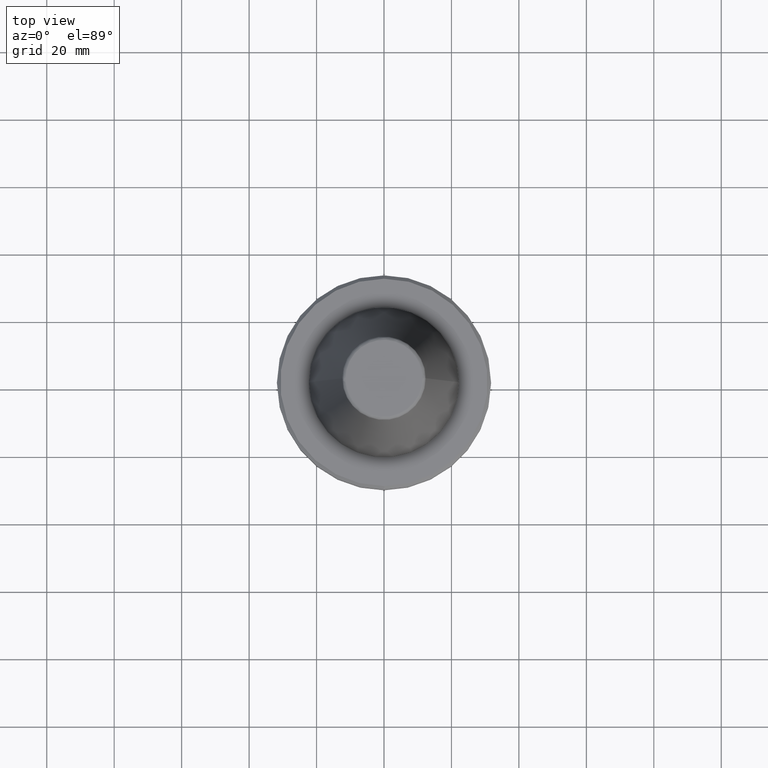
[diagram: clean part render]
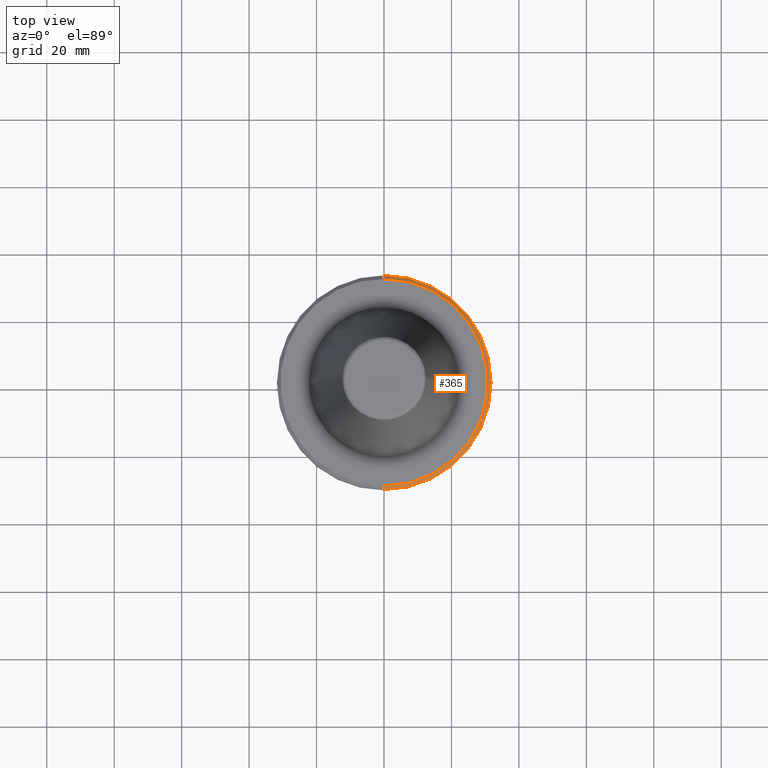
[diagram: same view with one face highlighted and labeled with its STEP entity id]
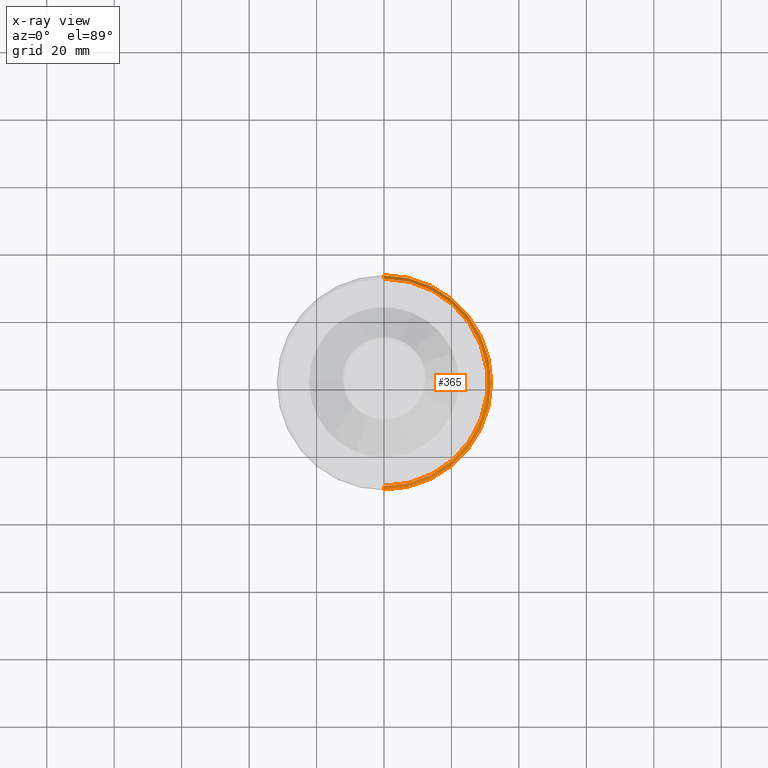
[diagram: x-ray of the same camera — body ghosted, the highlighted face saturated]
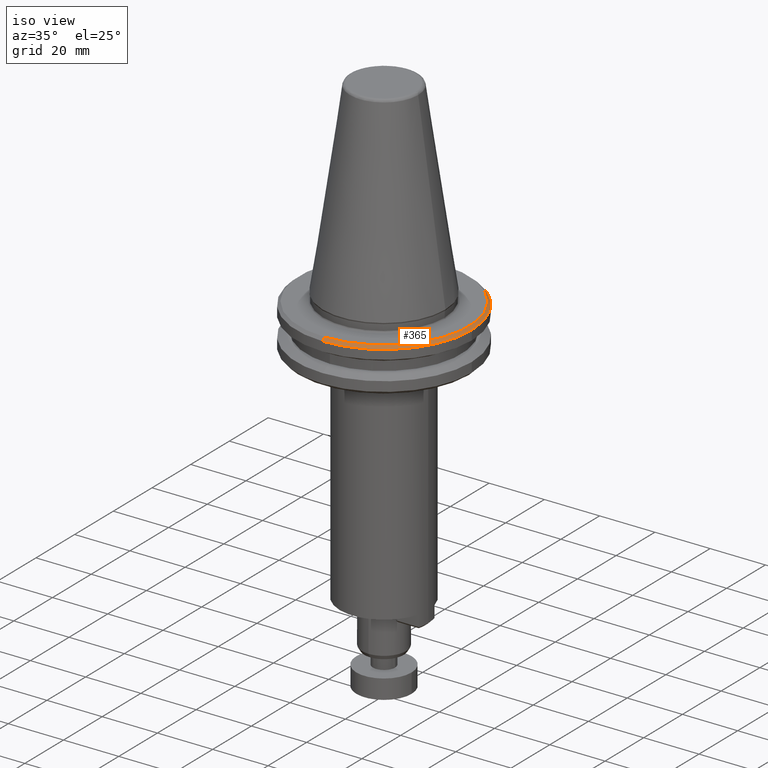
[diagram: same view with one face highlighted and labeled with its STEP entity id]
A machine part, top view. The second image highlights one B-rep face of the part: STEP entity #365.
The next image is the same camera in x-ray: the body ghosted, the highlighted face saturated — about 0% of this face is hidden behind the body in this view.
A second angle (iso view) of the same face is appended — the face is thin or edge-on in the first view.
In plain terms, the highlighted conical surface has half-angle 45 deg.
Its self-contained STEP definition (entity closure, byte-faithful):
#13 = DIRECTION ( 'NONE',  ( 1.370982914611145200E-017, 2.741965829222290500E-017, -1.000000000000000000 ) ) ;
#150 = ORIENTED_EDGE ( 'NONE', *, *, #1591, .T. ) ;
#240 = VERTEX_POINT ( 'NONE', #519 ) ;
#365 = ADVANCED_FACE ( 'NONE', ( #903 ), #723, .T. ) ;
#415 = CARTESIAN_POINT ( 'NONE',  ( 0.0000000000000000000, 31.63284271250073200, -4.082842712500732500 ) ) ;
#464 = AXIS2_PLACEMENT_3D ( 'NONE', #2266, #13, #2254 ) ;
#504 = CIRCLE ( 'NONE', #1803, 31.75000000000005700 ) ;
#519 = CARTESIAN_POINT ( 'NONE',  ( 1.606206394838844800E-018, 31.75000000000014600, -4.200000000000148500 ) ) ;
#592 = VERTEX_POINT ( 'NONE', #1549 ) ;
#598 = CIRCLE ( 'NONE', #1360, 30.74999999999994300 ) ;
#634 = LINE ( 'NONE', #1675, #2026 ) ;
#636 = ORIENTED_EDGE ( 'NONE', *, *, #810, .T. ) ;
#693 = CARTESIAN_POINT ( 'NONE',  ( -5.248708178217646500E-018, 30.74999999999994300, -3.200000000000036100 ) ) ;
#723 = CONICAL_SURFACE ( 'NONE', #464, 31.63284271250073200, 0.7853981633974471700 ) ;
#734 = DIRECTION ( 'NONE',  ( -0.0000000000000000000, -0.0000000000000000000, 1.000000000000000000 ) ) ;
#810 = EDGE_CURVE ( 'NONE', #592, #2300, #634, .T. ) ;
#903 = FACE_OUTER_BOUND ( 'NONE', #2170, .T. ) ;
#986 = DIRECTION ( 'NONE',  ( -0.0000000000000000000, -0.0000000000000000000, 1.000000000000000000 ) ) ;
#997 = EDGE_CURVE ( 'NONE', #2069, #240, #1741, .T. ) ;
#1056 = CARTESIAN_POINT ( 'NONE',  ( 0.0000000000000000000, 0.0000000000000000000, -4.200000000000148500 ) ) ;
#1174 = ORIENTED_EDGE ( 'NONE', *, *, #1860, .F. ) ;
#1197 = CIRCLE ( 'NONE', #1309, 31.75000000000005700 ) ;
#1200 = DIRECTION ( 'NONE',  ( 9.694313158124394300E-018, 0.7071067811865466800, -0.7071067811865483500 ) ) ;
#1284 = DIRECTION ( 'NONE',  ( 1.000000000000000000, 0.0000000000000000000, 0.0000000000000000000 ) ) ;
#1309 = AXIS2_PLACEMENT_3D ( 'NONE', #1056, #986, #1859 ) ;
#1360 = AXIS2_PLACEMENT_3D ( 'NONE', #1995, #1764, #1738 ) ;
#1415 = ORIENTED_EDGE ( 'NONE', *, *, #1689, .T. ) ;
#1549 = CARTESIAN_POINT ( 'NONE',  ( 3.821772539157266300E-015, -30.74999999999994300, -3.200000000000036100 ) ) ;
#1591 = EDGE_CURVE ( 'NONE', #2300, #1753, #504, .T. ) ;
#1603 = DIRECTION ( 'NONE',  ( 9.628991878167362600E-017, -0.7071067811865466800, -0.7071067811865483500 ) ) ;
#1666 = VECTOR ( 'NONE', #1200, 1000.000000000000000 ) ;
#1675 = CARTESIAN_POINT ( 'NONE',  ( 3.873905957579570200E-015, -31.63284271250073200, -4.082842712500734300 ) ) ;
#1689 = EDGE_CURVE ( 'NONE', #1753, #240, #1197, .T. ) ;
#1738 = DIRECTION ( 'NONE',  ( 1.000000000000000000, 0.0000000000000000000, 0.0000000000000000000 ) ) ;
#1741 = LINE ( 'NONE', #415, #1666 ) ;
#1753 = VERTEX_POINT ( 'NONE', #1788 ) ;
#1764 = DIRECTION ( 'NONE',  ( -0.0000000000000000000, -0.0000000000000000000, 1.000000000000000000 ) ) ;
#1773 = ORIENTED_EDGE ( 'NONE', *, *, #997, .F. ) ;
#1788 = CARTESIAN_POINT ( 'NONE',  ( 31.75000000000005700, 0.0000000000000000000, -4.200000000000148500 ) ) ;
#1803 = AXIS2_PLACEMENT_3D ( 'NONE', #1990, #734, #1284 ) ;
#1859 = DIRECTION ( 'NONE',  ( 1.000000000000000000, 0.0000000000000000000, 0.0000000000000000000 ) ) ;
#1860 = EDGE_CURVE ( 'NONE', #592, #2069, #598, .T. ) ;
#1990 = CARTESIAN_POINT ( 'NONE',  ( 0.0000000000000000000, 0.0000000000000000000, -4.200000000000148500 ) ) ;
#1995 = CARTESIAN_POINT ( 'NONE',  ( 0.0000000000000000000, 0.0000000000000000000, -3.200000000000036100 ) ) ;
#1996 = CARTESIAN_POINT ( 'NONE',  ( 3.889859793687703600E-015, -31.75000000000014600, -4.200000000000148500 ) ) ;
#2026 = VECTOR ( 'NONE', #1603, 1000.000000000000000 ) ;
#2069 = VERTEX_POINT ( 'NONE', #693 ) ;
#2170 = EDGE_LOOP ( 'NONE', ( #1174, #636, #150, #1415, #1773 ) ) ;
#2254 = DIRECTION ( 'NONE',  ( 0.0000000000000000000, 1.000000000000000000, 2.741965829222290500E-017 ) ) ;
#2266 = CARTESIAN_POINT ( 'NONE',  ( 0.0000000000000000000, 0.0000000000000000000, -4.082842712500733400 ) ) ;
#2300 = VERTEX_POINT ( 'NONE', #1996 ) ;